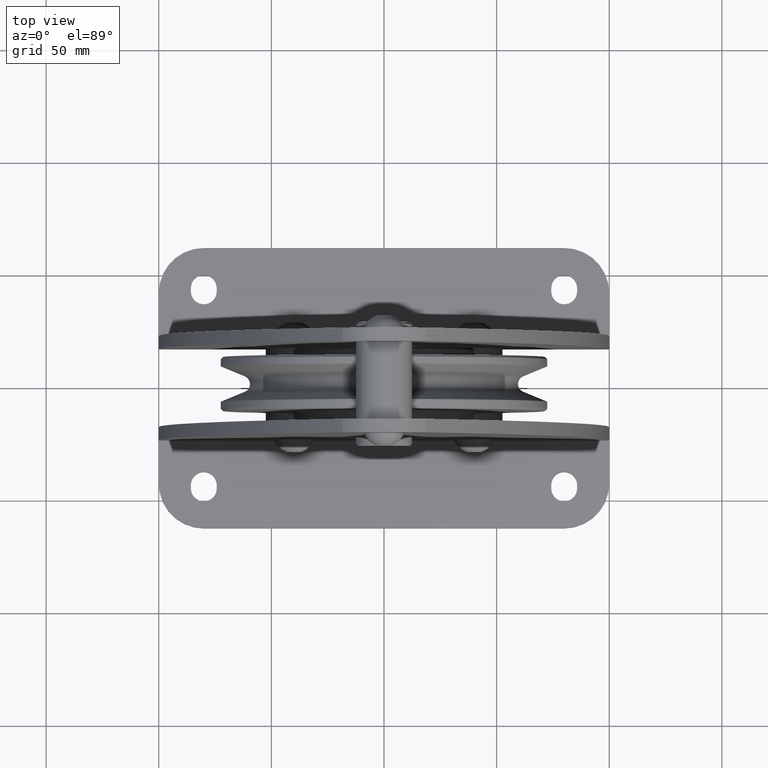
[diagram: clean part render]
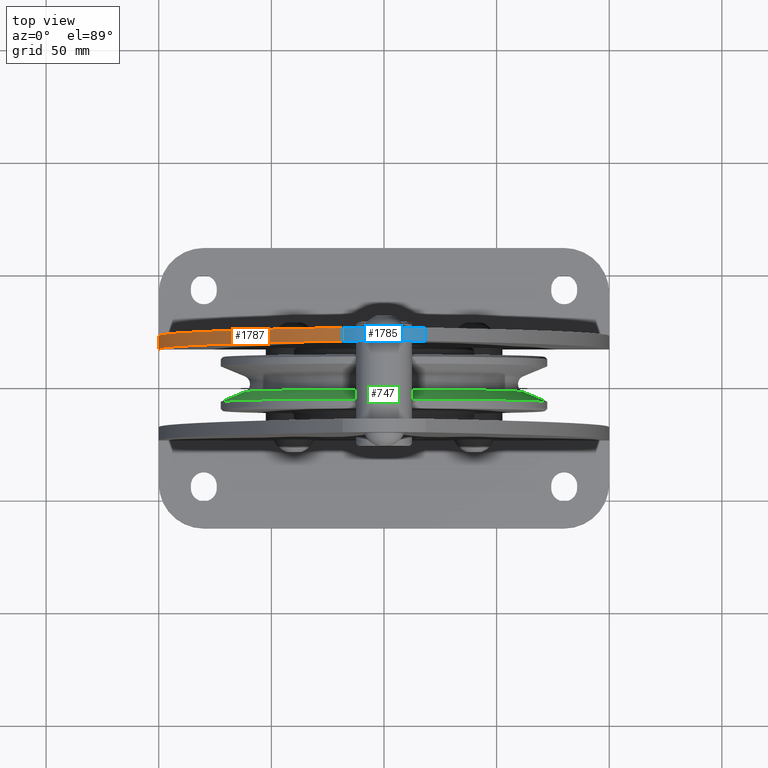
[diagram: same view with three faces highlighted in distinct colors, each labeled with its STEP entity id]
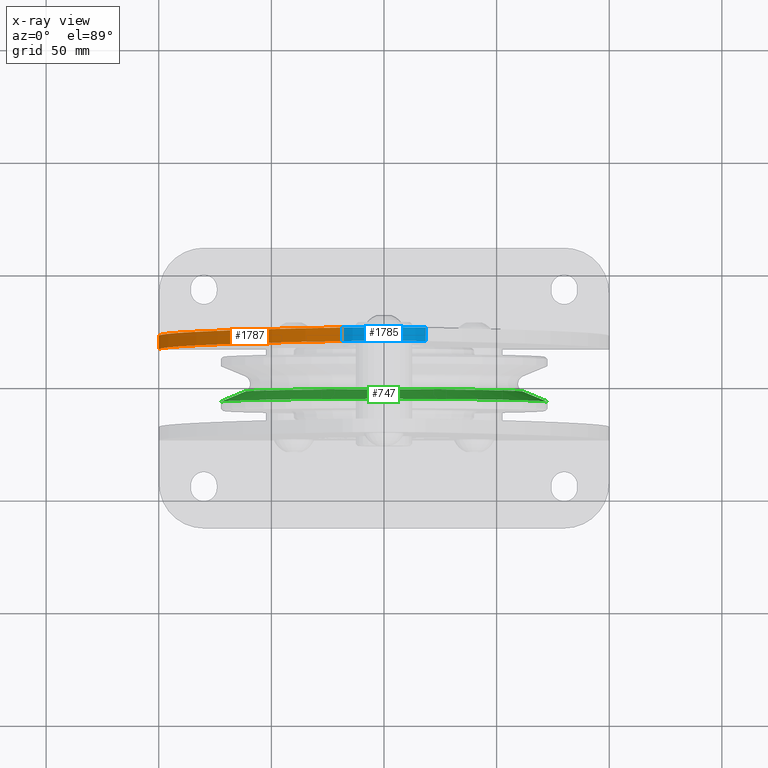
[diagram: x-ray of the same camera — body ghosted, the three highlighted faces saturated]
A machine part, top view with three faces highlighted in distinct colors.
The next image is the same camera in x-ray (body ghosted, the three faces saturated) — at least one of them is partly hidden behind the body in this view.
Their STEP definitions:

[orange] entity #1787 — the highlighted cylindrical surface (partial cylindrical patch) has radius 310 mm, axis along (0, 1, 0).
#1787=ADVANCED_FACE('',(#3755),#3756,.T.);
#3755=FACE_OUTER_BOUND('',#5861,.T.);
#3756=CYLINDRICAL_SURFACE('',#5862,309.999999979701);
#5861=EDGE_LOOP('',(#11550,#11551,#11552,#11553));
#5862=AXIS2_PLACEMENT_3D('',#11554,#11555,#11556);
#11550=ORIENTED_EDGE('',*,*,#14667,.T.);
#11551=ORIENTED_EDGE('',*,*,#14697,.F.);
#11552=ORIENTED_EDGE('',*,*,#14698,.T.);
#11553=ORIENTED_EDGE('',*,*,#14694,.T.);
#11554=CARTESIAN_POINT('',(209.999999979701,17.25,-103.9999999978));
#11555=DIRECTION('',(0.0,1.0,0.0));
#11556=DIRECTION('',(-1.0,0.0,-6.97995926336286E-012));
#14667=EDGE_CURVE('',#18207,#18205,#18208,.T.);
#14694=EDGE_CURVE('',#18247,#18207,#18248,.T.);
#14697=EDGE_CURVE('',#18251,#18205,#18252,.T.);
#14698=EDGE_CURVE('',#18251,#18247,#18253,.T.);
#18205=VERTEX_POINT('',#25944);
#18207=VERTEX_POINT('',#25947);
#18208=CIRCLE('',#25948,309.999999979701);
#18247=VERTEX_POINT('',#25999);
#18248=LINE('',#26000,#26001);
#18251=VERTEX_POINT('',#26004);
#18252=LINE('',#26005,#26006);
#18253=CIRCLE('',#26007,309.999999979701);
#25944=CARTESIAN_POINT('',(-100.0,23.25,-104.0));
#25947=CARTESIAN_POINT('',(-18.4210526299208,23.25,105.580110490116));
#25948=AXIS2_PLACEMENT_3D('',#29028,#29029,#29030);
#25999=CARTESIAN_POINT('',(-18.4210526299208,17.25,105.580110490116));
#26000=CARTESIAN_POINT('',(-18.4210526299208,17.25,105.580110490116));
#26001=VECTOR('',#29064,1.0);
#26004=CARTESIAN_POINT('',(-100.0,17.25,-104.0));
#26005=CARTESIAN_POINT('',(-100.0,17.25,-104.0));
#26006=VECTOR('',#29068,1.0);
#26007=AXIS2_PLACEMENT_3D('',#29069,#29070,#29071);
#29028=CARTESIAN_POINT('',(209.999999979701,23.25,-103.9999999978));
#29029=DIRECTION('',(0.0,-1.0,-0.0));
#29030=DIRECTION('',(-1.0,0.0,-6.97995926336286E-012));
#29064=DIRECTION('',(0.0,1.0,0.0));
#29068=DIRECTION('',(0.0,1.0,0.0));
#29069=CARTESIAN_POINT('',(209.999999979701,17.25,-103.9999999978));
#29070=DIRECTION('',(0.0,1.0,0.0));
#29071=DIRECTION('',(-1.0,0.0,-6.97995926336286E-012));

[blue] entity #1785 — the highlighted cylindrical surface (partial cylindrical patch) has radius 25 mm, axis along (0, 1, 0).
#1785=ADVANCED_FACE('',(#3752),#3753,.T.);
#3752=FACE_OUTER_BOUND('',#5858,.T.);
#3753=CYLINDRICAL_SURFACE('',#5859,24.999999988);
#5858=EDGE_LOOP('',(#11542,#11543,#11544,#11545));
#5859=AXIS2_PLACEMENT_3D('',#11546,#11547,#11548);
#11542=ORIENTED_EDGE('',*,*,#14668,.T.);
#11543=ORIENTED_EDGE('',*,*,#14694,.F.);
#11544=ORIENTED_EDGE('',*,*,#14695,.T.);
#11545=ORIENTED_EDGE('',*,*,#14691,.T.);
#11546=CARTESIAN_POINT('',(0.0,17.25,88.678488692));
#11547=DIRECTION('',(0.0,1.0,0.0));
#11548=DIRECTION('',(-0.736842105554445,0.0,0.676064872243849));
#14668=EDGE_CURVE('',#18209,#18207,#18210,.T.);
#14691=EDGE_CURVE('',#18243,#18209,#18244,.T.);
#14694=EDGE_CURVE('',#18247,#18207,#18248,.T.);
#14695=EDGE_CURVE('',#18247,#18243,#18249,.T.);
#18207=VERTEX_POINT('',#25947);
#18209=VERTEX_POINT('',#25949);
#18210=CIRCLE('',#25950,24.999999988);
#18243=VERTEX_POINT('',#25994);
#18244=LINE('',#25995,#25996);
#18247=VERTEX_POINT('',#25999);
#18248=LINE('',#26000,#26001);
#18249=CIRCLE('',#26002,24.999999988);
#25947=CARTESIAN_POINT('',(-18.4210526299208,23.25,105.580110490116));
#25949=CARTESIAN_POINT('',(18.421052630019,23.25,105.580110489983));
#25950=AXIS2_PLACEMENT_3D('',#29031,#29032,#29033);
#25994=CARTESIAN_POINT('',(18.421052630019,17.25,105.580110489983));
#25995=CARTESIAN_POINT('',(18.421052630019,17.25,105.580110489983));
#25996=VECTOR('',#29060,1.0);
#25999=CARTESIAN_POINT('',(-18.4210526299208,17.25,105.580110490116));
#26000=CARTESIAN_POINT('',(-18.4210526299208,17.25,105.580110490116));
#26001=VECTOR('',#29064,1.0);
#26002=AXIS2_PLACEMENT_3D('',#29065,#29066,#29067);
#29031=CARTESIAN_POINT('',(0.0,23.25,88.678488692));
#29032=DIRECTION('',(0.0,-1.0,0.0));
#29033=DIRECTION('',(-0.736842105554445,0.0,0.676064872243849));
#29060=DIRECTION('',(0.0,1.0,0.0));
#29064=DIRECTION('',(0.0,1.0,0.0));
#29065=CARTESIAN_POINT('',(0.0,17.25,88.678488692));
#29066=DIRECTION('',(0.0,1.0,0.0));
#29067=DIRECTION('',(-0.736842105554445,0.0,0.676064872243849));

[green] entity #747 — the highlighted conical surface has half-angle 67.5 deg.
#747=ADVANCED_FACE('',(#2128),#2129,.T.);
#2128=FACE_OUTER_BOUND('',#4234,.T.);
#2129=CONICAL_SURFACE('',#4235,67.1420355,1.17809721524448);
#4234=EDGE_LOOP('',(#6493,#6494,#6495,#6496));
#4235=AXIS2_PLACEMENT_3D('',#6497,#6498,#6499);
#6493=ORIENTED_EDGE('',*,*,#12714,.F.);
#6494=ORIENTED_EDGE('',*,*,#12562,.T.);
#6495=ORIENTED_EDGE('',*,*,#12715,.F.);
#6496=ORIENTED_EDGE('',*,*,#12716,.F.);
#6497=CARTESIAN_POINT('',(0.0,-5.63769575,0.0));
#6498=DIRECTION('',(-0.0,-1.0,0.0));
#6499=DIRECTION('',(1.0,0.0,0.0));
#12562=EDGE_CURVE('',#15051,#15049,#15052,.T.);
#12714=EDGE_CURVE('',#15051,#15322,#15323,.T.);
#12715=EDGE_CURVE('',#15324,#15049,#15325,.T.);
#12716=EDGE_CURVE('',#15322,#15324,#15326,.T.);
#15049=VERTEX_POINT('',#18731);
#15051=VERTEX_POINT('',#18733);
#15052=CIRCLE('',#18734,61.784071);
#15322=VERTEX_POINT('',#19774);
#15323=LINE('',#19775,#19776);
#15324=VERTEX_POINT('',#19777);
#15325=LINE('',#19778,#19779);
#15326=CIRCLE('',#19780,72.5);
#18731=CARTESIAN_POINT('',(-61.784071,-3.418354,7.56636647884428E-015));
#18733=CARTESIAN_POINT('',(61.784071,-3.418354,0.0));
#18734=AXIS2_PLACEMENT_3D('',#26640,#26641,#26642);
#19774=CARTESIAN_POINT('',(72.5,-7.8570375,0.0));
#19775=CARTESIAN_POINT('',(67.1420355,-5.63769575,-8.22252788633129E-015));
#19776=VECTOR('',#26841,1.0);
#19777=CARTESIAN_POINT('',(-72.5,-7.8570375,8.87868929381831E-015));
#19778=CARTESIAN_POINT('',(-67.1420355,-5.63769575,8.22252788633129E-015));
#19779=VECTOR('',#26842,1.0);
#19780=AXIS2_PLACEMENT_3D('',#26843,#26844,#26845);
#26640=CARTESIAN_POINT('',(0.0,-3.418354,0.0));
#26641=DIRECTION('',(0.0,-1.0,0.0));
#26642=DIRECTION('',(1.0,0.0,0.0));
#26841=DIRECTION('',(0.923879521087538,-0.382683459944458,-1.13142609829764E-016));
#26842=DIRECTION('',(0.923879521087538,0.382683459944458,-1.13142609829764E-016));
#26843=CARTESIAN_POINT('',(0.0,-7.8570375,0.0));
#26844=DIRECTION('',(0.0,-1.0,0.0));
#26845=DIRECTION('',(1.0,0.0,0.0));